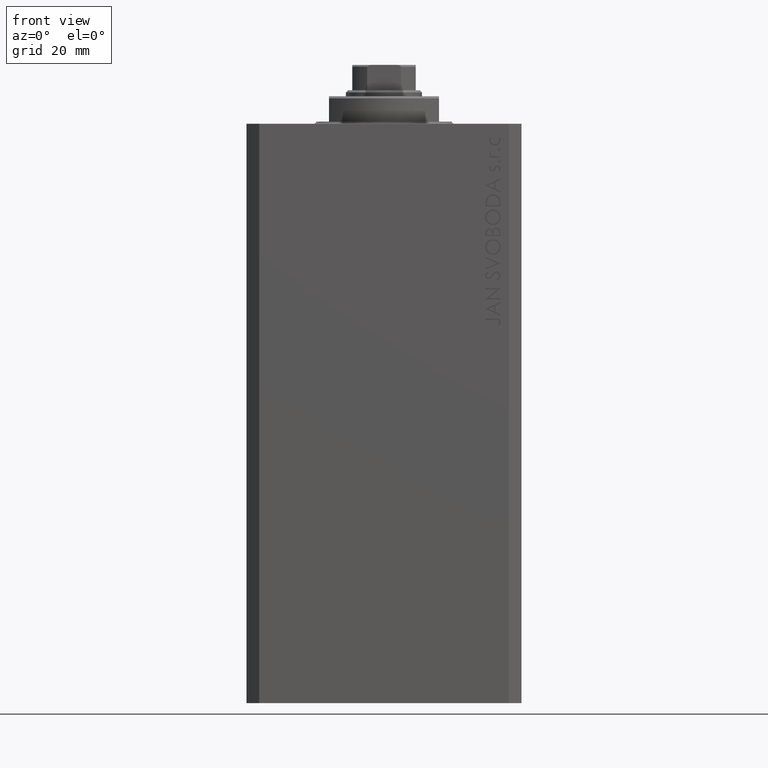
[diagram: clean part render]
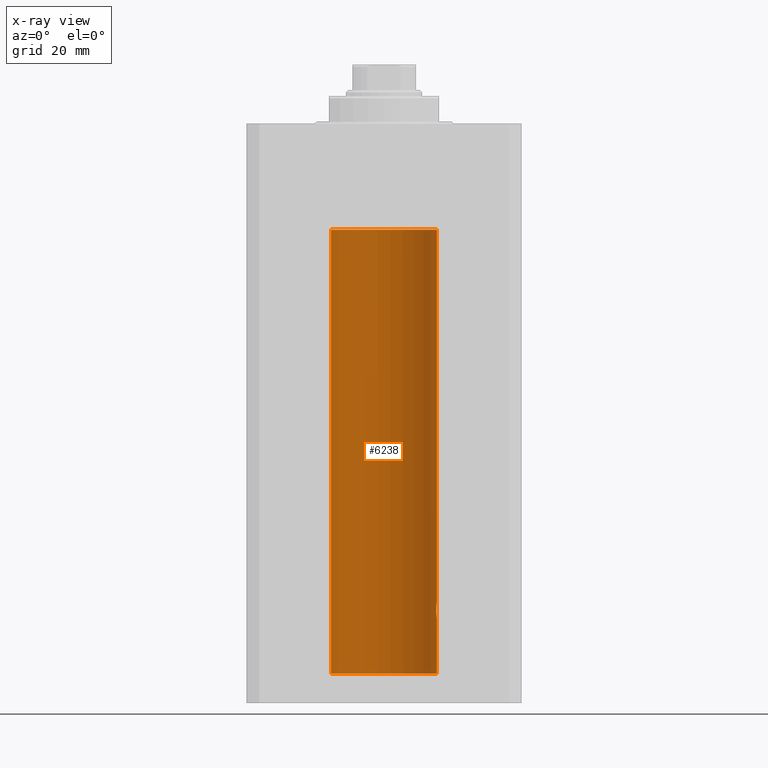
[diagram: x-ray — body ghosted, one internal face saturated and labeled with its STEP entity id]
A machine part, front view, then the same camera in x-ray: the body is ghosted and one INTERNAL B-rep face — a face not visible from any outside direction — is saturated and labeled: STEP entity #6238.
In plain terms, the highlighted cylindrical surface (partial cylindrical patch) has radius 12.5 mm, axis along (0, 0, 1).
Its self-contained STEP definition (entity closure, byte-faithful):
#554 = CARTESIAN_POINT ( 'NONE',  ( 12.40916530024876430, 1.507117913375715990, -113.6786595504900674 ) ) ;
#1020 = CARTESIAN_POINT ( 'NONE',  ( 12.49999999999999822, 0.1306079576516667173, -113.0000000000000284 ) ) ;
#1515 = CARTESIAN_POINT ( 'NONE',  ( 12.50000000000000000, 0.000000000000000000, -130.0999999999999943 ) ) ;
#2755 = ORIENTED_EDGE ( 'NONE', *, *, #34274, .F. ) ;
#3171 = EDGE_CURVE ( 'NONE', #16574, #14558, #5815, .T. ) ;
#3282 = CARTESIAN_POINT ( 'NONE',  ( 12.48390005916863110, 0.6457215011736527899, -116.8974277155426904 ) ) ;
#3634 = DIRECTION ( 'NONE',  ( 0.000000000000000000, 0.000000000000000000, 1.000000000000000000 ) ) ;
#4160 = EDGE_CURVE ( 'NONE', #35612, #14041, #14010, .T. ) ;
#4820 = CARTESIAN_POINT ( 'NONE',  ( 12.50000000000000000, 0.000000000000000000, -25.10000000000000142 ) ) ;
#5592 = CARTESIAN_POINT ( 'NONE',  ( 0.000000000000000000, 0.000000000000000000, -130.0999999999999943 ) ) ;
#5815 = B_SPLINE_CURVE_WITH_KNOTS ( 'NONE', 3,
 ( #34195, #12019, #15386, #27047, #41619, #40670, #7971, #37323, #554, #15848, #26575, #30382, #18721, #18959, #23232, #44509, #1020, #44279 ),
 .UNSPECIFIED., .F., .F.,
 ( 4, 2, 2, 2, 2, 2, 2, 2, 4 ),
 ( 0.003132244164174466730, 0.003523586189974241625, 0.003914928215774016521, 0.004306270241573791416, 0.004697612267373566311, 0.005088954293173341206, 0.005480296318973116101, 0.005871638344772890997, 0.006262980370572665892 ),
 .UNSPECIFIED. ) ;
#6238 = ADVANCED_FACE ( 'NONE', ( #46821 ), #39179, .F. ) ;
#7578 = AXIS2_PLACEMENT_3D ( 'NONE', #9332, #45614, #41335 ) ;
#7971 = CARTESIAN_POINT ( 'NONE',  ( 12.37925647381943506, 1.734744884174218571, -113.9962073259865321 ) ) ;
#9332 = CARTESIAN_POINT ( 'NONE',  ( 0.000000000000000000, 0.000000000000000000, -130.0999999999999943 ) ) ;
#9683 = CARTESIAN_POINT ( 'NONE',  ( 0.000000000000000000, 0.000000000000000000, -25.10000000000000142 ) ) ;
#10080 = LINE ( 'NONE', #13668, #30623 ) ;
#10631 = CARTESIAN_POINT ( 'NONE',  ( 12.50000000000000000, -7.266276684081261841E-23, -113.0000000000000142 ) ) ;
#10770 = DIRECTION ( 'NONE',  ( 1.000000000000000000, 0.000000000000000000, 0.000000000000000000 ) ) ;
#10920 = ORIENTED_EDGE ( 'NONE', *, *, #36569, .T. ) ;
#10938 = AXIS2_PLACEMENT_3D ( 'NONE', #9683, #3634, #40162 ) ;
#11076 = CARTESIAN_POINT ( 'NONE',  ( 12.50000000000000000, 2.320363022323678888E-15, -117.0000000000000142 ) ) ;
#11155 = ORIENTED_EDGE ( 'NONE', *, *, #4160, .T. ) ;
#11427 = DIRECTION ( 'NONE',  ( -0.000000000000000000, -0.000000000000000000, 1.000000000000000000 ) ) ;
#12019 = CARTESIAN_POINT ( 'NONE',  ( 12.33896267925302581, 2.000000000000247358, -114.8693470594992334 ) ) ;
#12087 = CARTESIAN_POINT ( 'NONE',  ( 12.33896267925302759, 2.000000000000248246, -115.2614317422079040 ) ) ;
#13668 = CARTESIAN_POINT ( 'NONE',  ( 12.50000000000000000, 0.000000000000000000, -130.0999999999999943 ) ) ;
#13894 = DIRECTION ( 'NONE',  ( -0.000000000000000000, -0.000000000000000000, 1.000000000000000000 ) ) ;
#14010 = CIRCLE ( 'NONE', #10938, 12.50000000000000000 ) ;
#14041 = VERTEX_POINT ( 'NONE', #26221 ) ;
#14549 = LINE ( 'NONE', #28632, #16982 ) ;
#14558 = VERTEX_POINT ( 'NONE', #10631 ) ;
#14963 = ORIENTED_EDGE ( 'NONE', *, *, #38629, .T. ) ;
#15386 = CARTESIAN_POINT ( 'NONE',  ( 12.34110728646152388, 1.986893050944454453, -114.7366134776498541 ) ) ;
#15444 = CARTESIAN_POINT ( 'NONE',  ( 12.37760587642916477, 1.747868572747719229, -116.0063965316900152 ) ) ;
#15848 = CARTESIAN_POINT ( 'NONE',  ( 12.43037348241797524, 1.320834183883837554, -113.4924383770429728 ) ) ;
#16574 = VERTEX_POINT ( 'NONE', #40437 ) ;
#16982 = VECTOR ( 'NONE', #11427, 1000.000000000000000 ) ;
#17851 = CARTESIAN_POINT ( 'NONE',  ( 12.46901623405144122, 0.8878913781257877780, -116.7968965171755258 ) ) ;
#18721 = CARTESIAN_POINT ( 'NONE',  ( 12.46910683544638232, 0.8866026273585037032, -113.2024786368969700 ) ) ;
#18959 = CARTESIAN_POINT ( 'NONE',  ( 12.48395395845270528, 0.6446573166014707423, -113.1022212421351583 ) ) ;
#19035 = CIRCLE ( 'NONE', #7578, 12.50000000000000000 ) ;
#21423 = CARTESIAN_POINT ( 'NONE',  ( 12.49789833780794446, 0.2625555164371021766, -116.9869817082214922 ) ) ;
#21509 = DIRECTION ( 'NONE',  ( -0.000000000000000000, -0.000000000000000000, 1.000000000000000000 ) ) ;
#23232 = CARTESIAN_POINT ( 'NONE',  ( 12.48983962833819028, 0.5199974825204898288, -113.0643516080801874 ) ) ;
#25011 = CARTESIAN_POINT ( 'NONE',  ( 12.50000000000000178, 0.1324055009716466613, -117.0000000000000426 ) ) ;
#25707 = CARTESIAN_POINT ( 'NONE',  ( 12.50000000000000000, 2.320363022323678888E-15, -117.0000000000000142 ) ) ;
#25937 = CARTESIAN_POINT ( 'NONE',  ( 12.39869754437268590, 1.598954131913722820, -116.2293215281301286 ) ) ;
#26221 = CARTESIAN_POINT ( 'NONE',  ( -12.50000000000000000, 1.530808498934191521E-15, -25.10000000000000142 ) ) ;
#26575 = CARTESIAN_POINT ( 'NONE',  ( 12.44079117518645639, 1.220047488436368122, -113.4098967633508437 ) ) ;
#26585 = VECTOR ( 'NONE', #34868, 1000.000000000000000 ) ;
#26873 = CARTESIAN_POINT ( 'NONE',  ( 12.33896267925302759, 2.000000000000247802, -115.0000000000000142 ) ) ;
#27047 = CARTESIAN_POINT ( 'NONE',  ( 12.34924836377099844, 1.935649219704934865, -114.4800206212716631 ) ) ;
#28632 = CARTESIAN_POINT ( 'NONE',  ( -12.50000000000000000, 1.530808498934191521E-15, -130.0999999999999943 ) ) ;
#30382 = CARTESIAN_POINT ( 'NONE',  ( 12.46011632531798874, 1.003644408234883434, -113.2651679968767127 ) ) ;
#30623 = VECTOR ( 'NONE', #13894, 1000.000000000000000 ) ;
#31310 = EDGE_LOOP ( 'NONE', ( #33541, #2755, #34976, #14963, #37328, #10920, #11155 ) ) ;
#31569 = AXIS2_PLACEMENT_3D ( 'NONE', #5592, #21509, #10770 ) ;
#31757 = CARTESIAN_POINT ( 'NONE',  ( 12.50000000000000000, 0.000000000000000000, -130.0999999999999943 ) ) ;
#32385 = CARTESIAN_POINT ( 'NONE',  ( 12.46019522898365217, 1.002712894177336223, -116.7354089602759899 ) ) ;
#33541 = ORIENTED_EDGE ( 'NONE', *, *, #45590, .F. ) ;
#33955 = B_SPLINE_CURVE_WITH_KNOTS ( 'NONE', 3,
 ( #25707, #25011, #21423, #35976, #3282, #17851, #32385, #46962, #44796, #25937, #15444, #45032, #12087, #26873 ),
 .UNSPECIFIED., .F., .F.,
 ( 4, 2, 2, 2, 2, 2, 4 ),
 ( 2.254408494944823136E-18, 0.0003915305205218102386, 0.0007830610410436180920, 0.001174591561565426108, 0.001566122082087234016, 0.002349183123130850048, 0.003132244164174466730 ),
 .UNSPECIFIED. ) ;
#34035 = VERTEX_POINT ( 'NONE', #43098 ) ;
#34195 = CARTESIAN_POINT ( 'NONE',  ( 12.33896267925302759, 2.000000000000247802, -115.0000000000000142 ) ) ;
#34274 = EDGE_CURVE ( 'NONE', #40376, #34035, #19035, .T. ) ;
#34868 = DIRECTION ( 'NONE',  ( -0.000000000000000000, -0.000000000000000000, 1.000000000000000000 ) ) ;
#34976 = ORIENTED_EDGE ( 'NONE', *, *, #44101, .T. ) ;
#35612 = VERTEX_POINT ( 'NONE', #4820 ) ;
#35976 = CARTESIAN_POINT ( 'NONE',  ( 12.48989642018887736, 0.5185418732824252919, -116.9360129218760846 ) ) ;
#36569 = EDGE_CURVE ( 'NONE', #14558, #35612, #38232, .T. ) ;
#37323 = CARTESIAN_POINT ( 'NONE',  ( 12.39867611624532806, 1.590019252152828910, -113.7798449592961276 ) ) ;
#37328 = ORIENTED_EDGE ( 'NONE', *, *, #3171, .T. ) ;
#37920 = VERTEX_POINT ( 'NONE', #11076 ) ;
#38232 = LINE ( 'NONE', #31757, #26585 ) ;
#38629 = EDGE_CURVE ( 'NONE', #37920, #16574, #33955, .T. ) ;
#39179 = CYLINDRICAL_SURFACE ( 'NONE', #31569, 12.50000000000000000 ) ;
#40162 = DIRECTION ( 'NONE',  ( 1.000000000000000000, 0.000000000000000000, 0.000000000000000000 ) ) ;
#40376 = VERTEX_POINT ( 'NONE', #1515 ) ;
#40437 = CARTESIAN_POINT ( 'NONE',  ( 12.33896267925302759, 2.000000000000247802, -115.0000000000000142 ) ) ;
#40670 = CARTESIAN_POINT ( 'NONE',  ( 12.37021546997940291, 1.797317011867403114, -114.1129511974108510 ) ) ;
#41335 = DIRECTION ( 'NONE',  ( 1.000000000000000000, 0.000000000000000000, 0.000000000000000000 ) ) ;
#41619 = CARTESIAN_POINT ( 'NONE',  ( 12.35520276972935427, 1.897773362058238877, -114.3552827863433947 ) ) ;
#43098 = CARTESIAN_POINT ( 'NONE',  ( -12.50000000000000000, 1.530808498934191521E-15, -130.0999999999999943 ) ) ;
#44101 = EDGE_CURVE ( 'NONE', #40376, #37920, #10080, .T. ) ;
#44279 = CARTESIAN_POINT ( 'NONE',  ( 12.50000000000000000, -7.266276684081261841E-23, -113.0000000000000142 ) ) ;
#44509 = CARTESIAN_POINT ( 'NONE',  ( 12.49788668346399945, 0.2632864803365707607, -113.0130897583833587 ) ) ;
#44796 = CARTESIAN_POINT ( 'NONE',  ( 12.43016561391612917, 1.322713721413880661, -116.5057887783670196 ) ) ;
#45032 = CARTESIAN_POINT ( 'NONE',  ( 12.34779119491631683, 1.947363444907009633, -115.5250277516825861 ) ) ;
#45590 = EDGE_CURVE ( 'NONE', #34035, #14041, #14549, .T. ) ;
#45614 = DIRECTION ( 'NONE',  ( 0.000000000000000000, 0.000000000000000000, 1.000000000000000000 ) ) ;
#46821 = FACE_OUTER_BOUND ( 'NONE', #31310, .T. ) ;
#46962 = CARTESIAN_POINT ( 'NONE',  ( 12.44079900692650931, 1.220007525301739282, -116.5901757908366534 ) ) ;